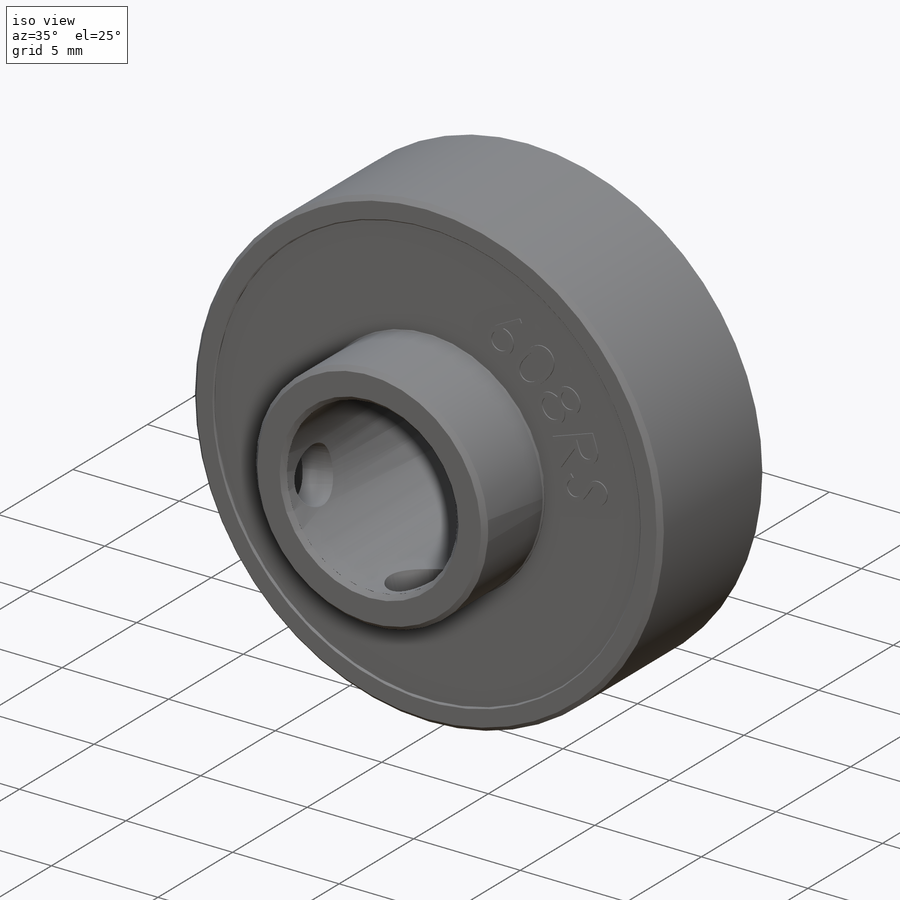
[diagram: iso view]
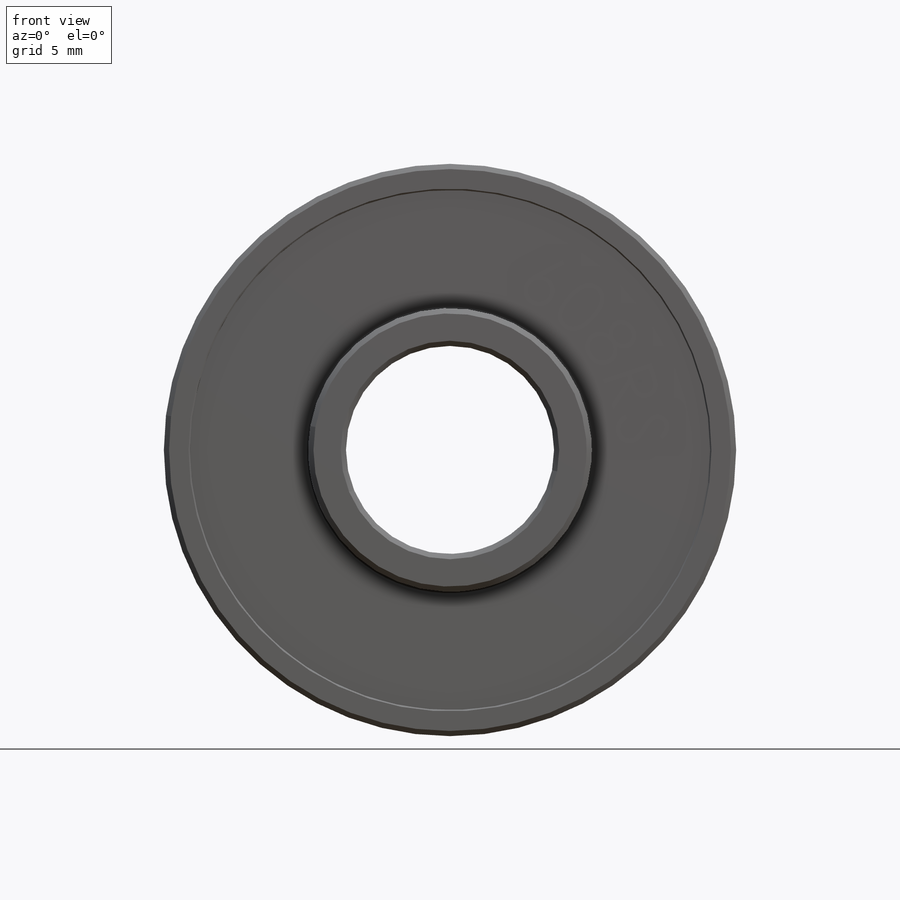
[diagram: front view]
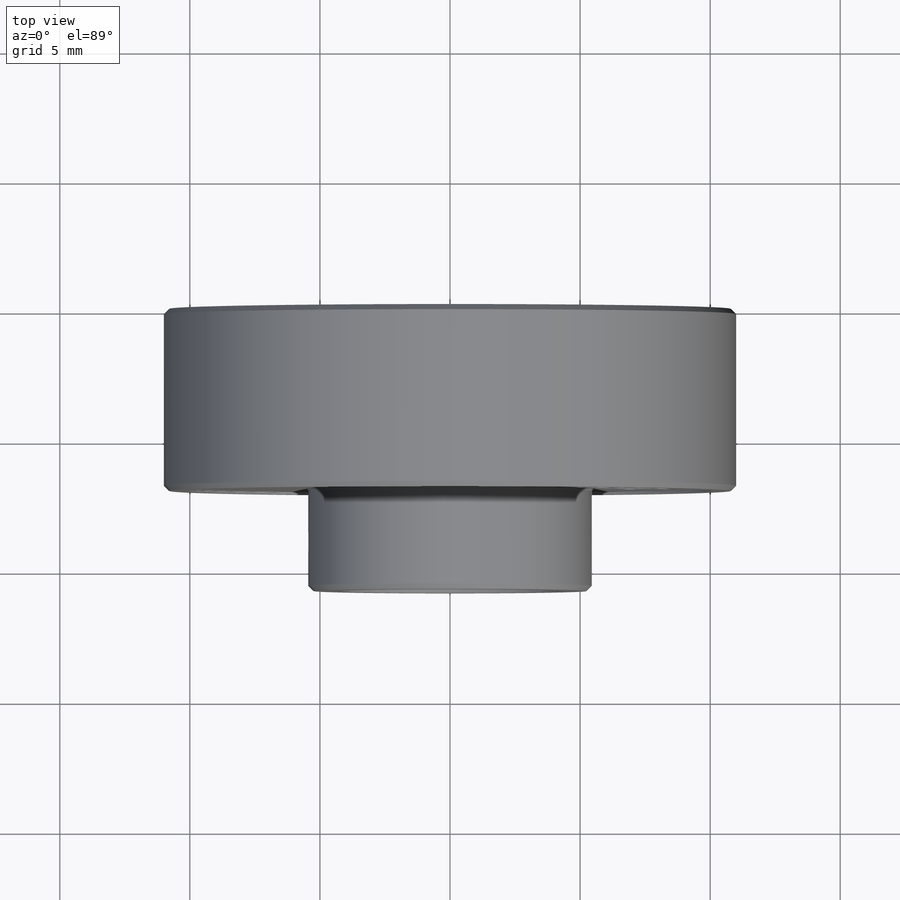
[diagram: top view]
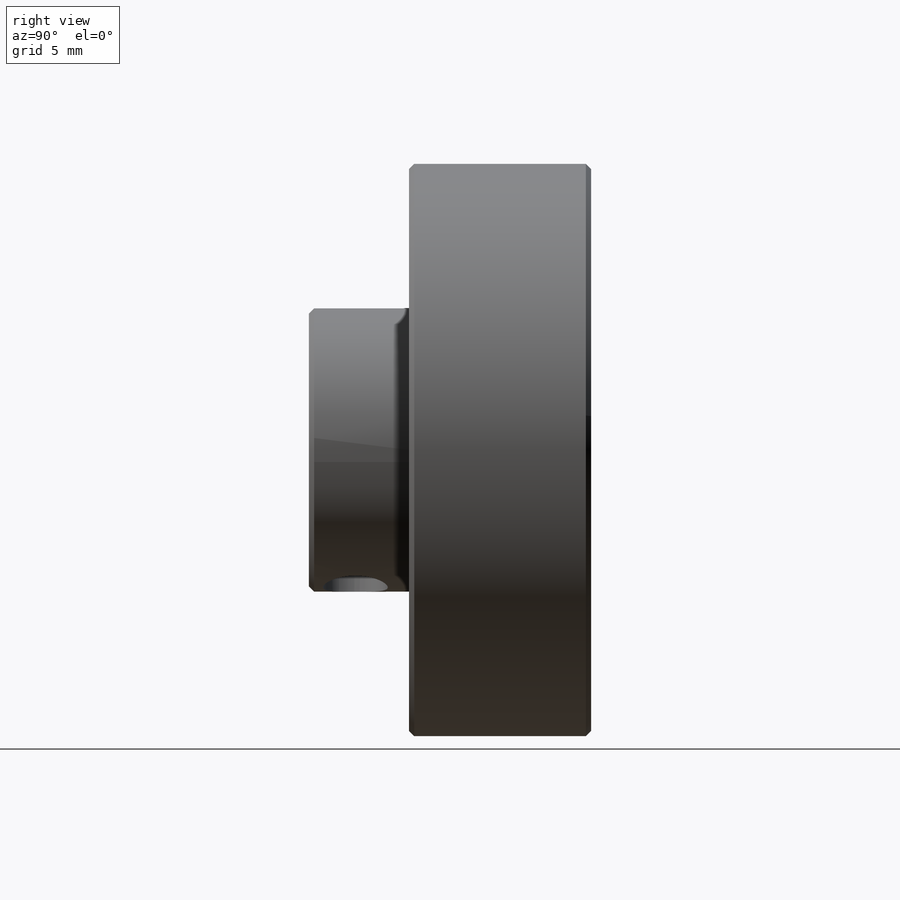
[diagram: right view]
SOLIDWORKS PART (.sldprt)
format: sldprt  version: not decoded by parser v0  size: 591,360 bytes
history: native  units: mm
features: sketch x8, extrude x4, cut_extrude x2, chamfer x2, material x1, hole x1 (+13 scaffold rows collapsed)
feature tree (31):
  scaffold x13  (default folders/planes/origin — collapsed)
  material  "AISI 1020"
  sketch  "Sketch1"  dims[D1=~4.35833mm]
  extrude  "Boss-Extrude1"  Depth=7mm
  sketch  "Sketch2"  dims[D1=~10.244996mm]
  cut_extrude  "Cut-Extrude1"  Depth=0.1mm
  cut_extrude  "Cut-Extrude2"  [1 undecoded]
  sketch  "Sketch2<2>"  dims[D1=0.1mm D19=6.9mm]
  chamfer  "Chamfer2"  Distance=0.05mm Angle=45deg
  sketch  "Esboço2"
  extrude  "Ressalto-extrusão1"  Depth=3.85mm
  sketch  "Sketch3"  dims[D1=~6.829249mm]
  extrude  "Boss-Extrude2"  Depth=0.05mm
  chamfer  "Chamfer1"  Distance=0.2mm Angle=45deg
  sketch  "Sketch4"  dims[D1=~7.315651mm]
  extrude  "Boss-Extrude3"  Depth=0.05mm
  hole  "Furo roscado de M31"  Diameter=2.5mm Depth=7.5mm
  sketch  "3DSketch1"
  sketch  "Esboço3"  dims[hole-wizard template sketch: 50 standard entries collapsed; hole parameters above]
decode coverage: 14 of 17 modeling features carry decoded parameters
note: ~ marks probable driven/reference dimensions
note: 1 parameter value undecoded
note: suppression state not decoded; provenance and decode notes live in map.json
